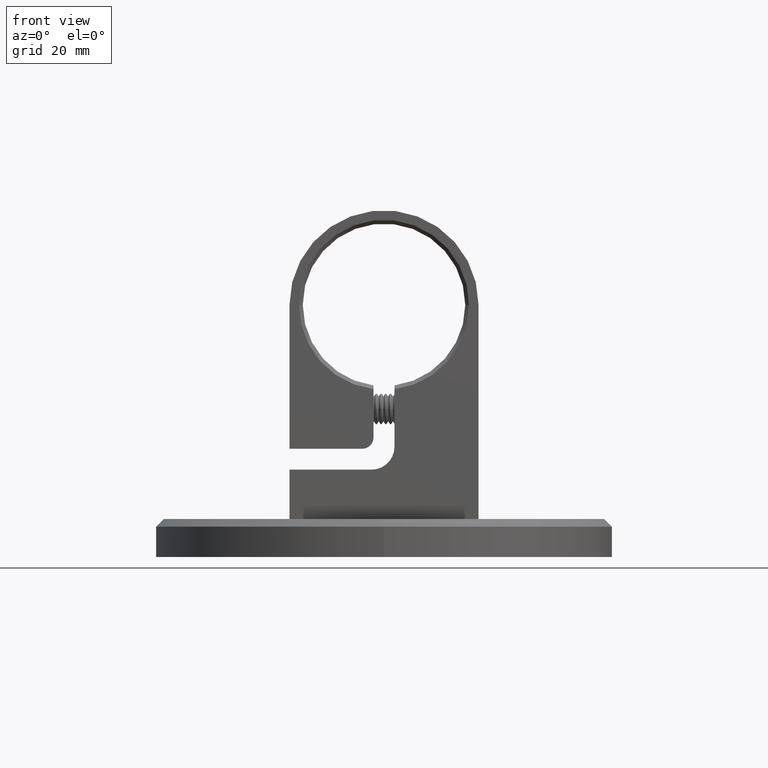
[diagram: clean part render]
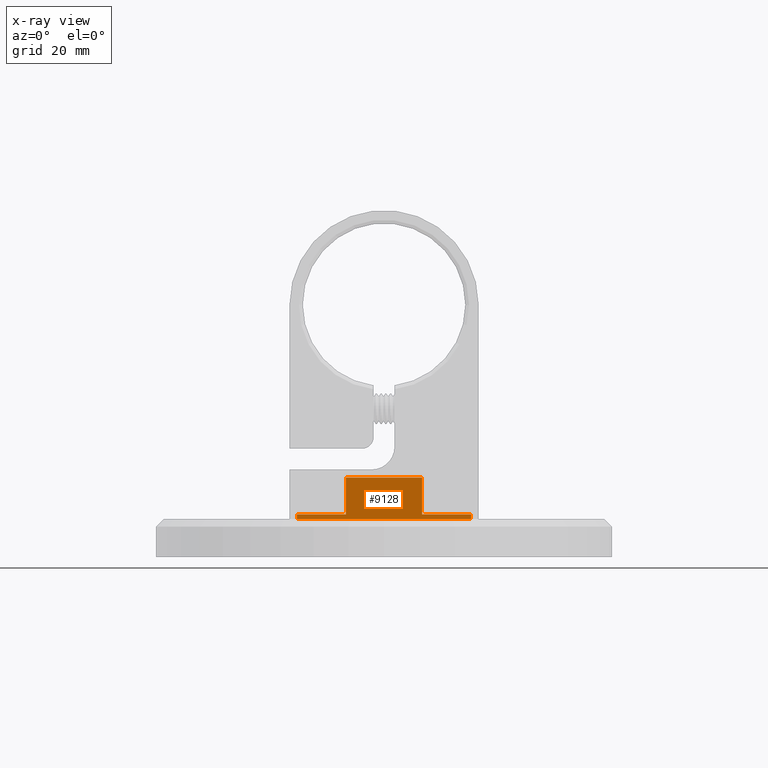
[diagram: x-ray — body ghosted, one internal face saturated and labeled with its STEP entity id]
A machine part, front view, then the same camera in x-ray: the body is ghosted and one INTERNAL B-rep face — a face not visible from any outside direction — is saturated and labeled: STEP entity #9128.
In plain terms, the highlighted planar face has unit normal (0, 1, 0).
Its self-contained STEP definition (entity closure, byte-faithful):
#371 = CARTESIAN_POINT ( 'NONE',  ( -4.999999999999997300, 10.90000000000000900, -9.999999999999994700 ) ) ;
#496 = VECTOR ( 'NONE', #19034, 1000.000000000000000 ) ;
#554 = CARTESIAN_POINT ( 'NONE',  ( -4.999999999999976900, 0.0000000000000000000, 22.89999999999999100 ) ) ;
#873 = LINE ( 'NONE', #15760, #9932 ) ;
#1030 = LINE ( 'NONE', #1839, #19671 ) ;
#1324 = DIRECTION ( 'NONE',  ( -1.000000000000000000, 0.0000000000000000000, 0.0000000000000000000 ) ) ;
#1839 = CARTESIAN_POINT ( 'NONE',  ( -5.000000000000004400, 10.90000000000000900, 9.999999999999991100 ) ) ;
#2235 = FACE_OUTER_BOUND ( 'NONE', #11932, .T. ) ;
#2455 = CARTESIAN_POINT ( 'NONE',  ( -5.000000000000004400, 1.200000000000006600, -22.89999999999997700 ) ) ;
#2630 = LINE ( 'NONE', #371, #21283 ) ;
#3604 = CARTESIAN_POINT ( 'NONE',  ( -4.999999999999976900, 1.200000000000006600, 22.89999999999999100 ) ) ;
#3938 = CARTESIAN_POINT ( 'NONE',  ( -4.999999999999997300, 1.199999999999992600, -9.999999999999994700 ) ) ;
#4847 = LINE ( 'NONE', #15683, #496 ) ;
#4861 = CARTESIAN_POINT ( 'NONE',  ( -5.000000000000004400, 1.199999999999992600, 9.999999999999991100 ) ) ;
#4917 = CARTESIAN_POINT ( 'NONE',  ( -4.999999999999997300, 10.90000000000000900, -9.999999999999994700 ) ) ;
#5436 = EDGE_CURVE ( 'NONE', #17148, #16616, #19650, .T. ) ;
#6051 = DIRECTION ( 'NONE',  ( -0.0000000000000000000, -1.000000000000000000, 0.0000000000000000000 ) ) ;
#6476 = ORIENTED_EDGE ( 'NONE', *, *, #12774, .F. ) ;
#6508 = CARTESIAN_POINT ( 'NONE',  ( -5.000000000000004400, 10.90000000000000900, 9.999999999999991100 ) ) ;
#6746 = DIRECTION ( 'NONE',  ( 0.0000000000000000000, 0.0000000000000000000, 1.000000000000000000 ) ) ;
#7337 = DIRECTION ( 'NONE',  ( 0.0000000000000000000, 0.0000000000000000000, -1.000000000000000000 ) ) ;
#7758 = EDGE_CURVE ( 'NONE', #10939, #17148, #16852, .T. ) ;
#7973 = ORIENTED_EDGE ( 'NONE', *, *, #15031, .F. ) ;
#8468 = DIRECTION ( 'NONE',  ( 0.0000000000000000000, 0.0000000000000000000, -1.000000000000000000 ) ) ;
#9128 = ADVANCED_FACE ( 'NONE', ( #2235 ), #20772, .F. ) ;
#9386 = LINE ( 'NONE', #2455, #19800 ) ;
#9706 = VERTEX_POINT ( 'NONE', #15050 ) ;
#9932 = VECTOR ( 'NONE', #17512, 1000.000000000000000 ) ;
#10939 = VERTEX_POINT ( 'NONE', #20865 ) ;
#11932 = EDGE_LOOP ( 'NONE', ( #22154, #13562, #20480, #6476, #20095, #21629, #7973, #18771 ) ) ;
#12590 = CARTESIAN_POINT ( 'NONE',  ( -5.000000000000004400, 0.0000000000000000000, -22.89999999999997700 ) ) ;
#12774 = EDGE_CURVE ( 'NONE', #14983, #15723, #4847, .T. ) ;
#13562 = ORIENTED_EDGE ( 'NONE', *, *, #15352, .F. ) ;
#13612 = VERTEX_POINT ( 'NONE', #4861 ) ;
#14103 = EDGE_CURVE ( 'NONE', #22531, #13612, #1030, .T. ) ;
#14364 = VECTOR ( 'NONE', #17727, 1000.000000000000000 ) ;
#14983 = VERTEX_POINT ( 'NONE', #4917 ) ;
#15031 = EDGE_CURVE ( 'NONE', #10939, #13612, #16529, .T. ) ;
#15050 = CARTESIAN_POINT ( 'NONE',  ( -5.000000000000004400, 1.200000000000006600, -22.89999999999997700 ) ) ;
#15119 = EDGE_CURVE ( 'NONE', #15723, #9706, #873, .T. ) ;
#15352 = EDGE_CURVE ( 'NONE', #9706, #16616, #9386, .T. ) ;
#15424 = VECTOR ( 'NONE', #8468, 1000.000000000000000 ) ;
#15596 = CARTESIAN_POINT ( 'NONE',  ( -5.000000000000004400, 1.200000000000006600, -22.89999999999997700 ) ) ;
#15683 = CARTESIAN_POINT ( 'NONE',  ( -4.999999999999997300, 10.90000000000000900, -9.999999999999994700 ) ) ;
#15723 = VERTEX_POINT ( 'NONE', #3938 ) ;
#15760 = CARTESIAN_POINT ( 'NONE',  ( -5.000000000000004400, 1.200000000000006600, -22.89999999999997700 ) ) ;
#16029 = CARTESIAN_POINT ( 'NONE',  ( -5.000000000000004400, 0.0000000000000000000, -22.89999999999997700 ) ) ;
#16529 = LINE ( 'NONE', #22626, #15424 ) ;
#16616 = VERTEX_POINT ( 'NONE', #16029 ) ;
#16852 = LINE ( 'NONE', #3604, #14364 ) ;
#17148 = VERTEX_POINT ( 'NONE', #554 ) ;
#17512 = DIRECTION ( 'NONE',  ( 0.0000000000000000000, 0.0000000000000000000, -1.000000000000000000 ) ) ;
#17727 = DIRECTION ( 'NONE',  ( -0.0000000000000000000, -1.000000000000000000, 0.0000000000000000000 ) ) ;
#17743 = DIRECTION ( 'NONE',  ( 0.0000000000000000000, 0.0000000000000000000, -1.000000000000000000 ) ) ;
#18771 = ORIENTED_EDGE ( 'NONE', *, *, #7758, .T. ) ;
#19034 = DIRECTION ( 'NONE',  ( -0.0000000000000000000, -1.000000000000000000, 0.0000000000000000000 ) ) ;
#19616 = DIRECTION ( 'NONE',  ( -0.0000000000000000000, -1.000000000000000000, 0.0000000000000000000 ) ) ;
#19650 = LINE ( 'NONE', #12590, #21546 ) ;
#19671 = VECTOR ( 'NONE', #19616, 1000.000000000000000 ) ;
#19800 = VECTOR ( 'NONE', #6051, 1000.000000000000000 ) ;
#19966 = AXIS2_PLACEMENT_3D ( 'NONE', #15596, #1324, #6746 ) ;
#20095 = ORIENTED_EDGE ( 'NONE', *, *, #20750, .F. ) ;
#20480 = ORIENTED_EDGE ( 'NONE', *, *, #15119, .F. ) ;
#20750 = EDGE_CURVE ( 'NONE', #22531, #14983, #2630, .T. ) ;
#20772 = PLANE ( 'NONE',  #19966 ) ;
#20865 = CARTESIAN_POINT ( 'NONE',  ( -4.999999999999976900, 1.200000000000006600, 22.89999999999999100 ) ) ;
#21283 = VECTOR ( 'NONE', #7337, 1000.000000000000000 ) ;
#21546 = VECTOR ( 'NONE', #17743, 1000.000000000000000 ) ;
#21629 = ORIENTED_EDGE ( 'NONE', *, *, #14103, .T. ) ;
#22154 = ORIENTED_EDGE ( 'NONE', *, *, #5436, .T. ) ;
#22531 = VERTEX_POINT ( 'NONE', #6508 ) ;
#22626 = CARTESIAN_POINT ( 'NONE',  ( -5.000000000000004400, 1.200000000000006600, -22.89999999999997700 ) ) ;